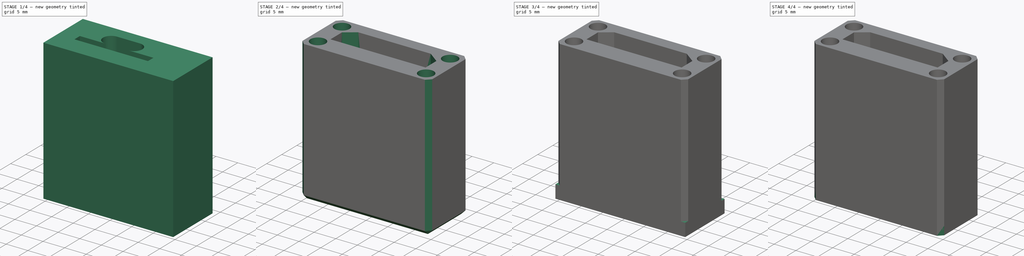
[diagram: build sequence overview — one tinted view per stage of 4, left to right]
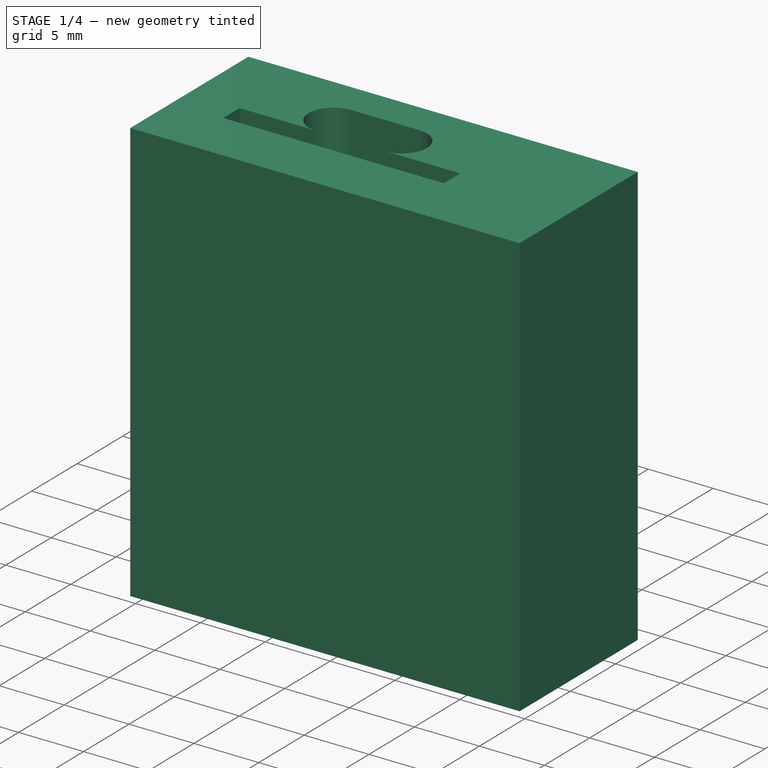
[diagram: stage 1 of 4 — iso view after this stage's code; geometry added in this stage tinted green]
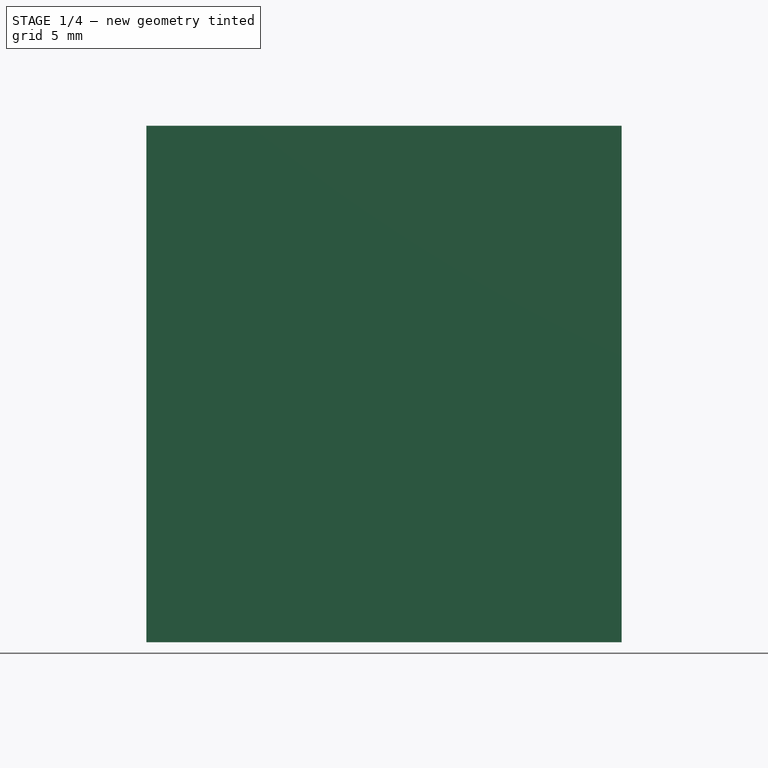
[diagram: stage 1 of 4 — front view after this stage's code; geometry added in this stage tinted green]
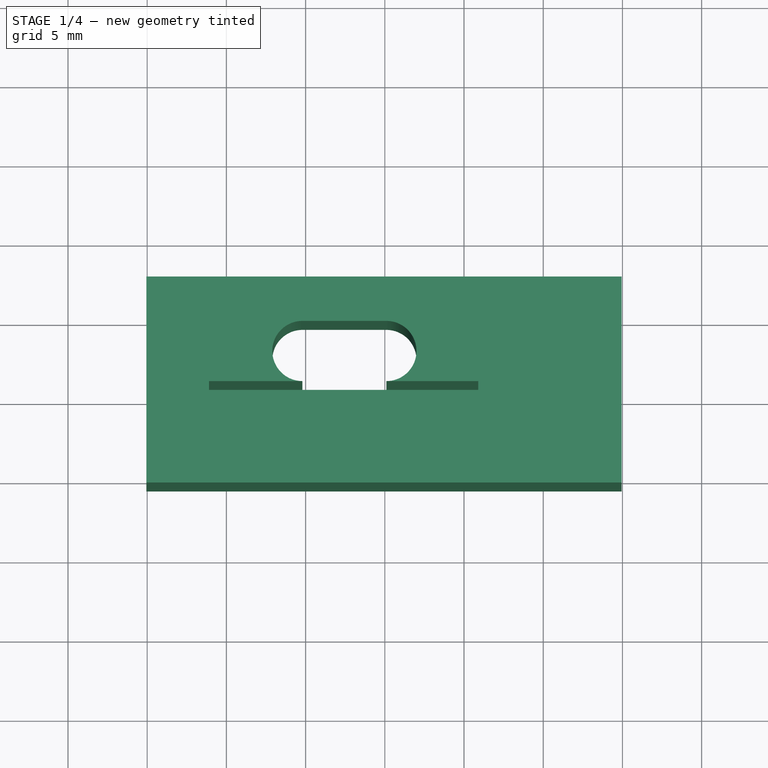
[diagram: stage 1 of 4 — top view after this stage's code; geometry added in this stage tinted green]
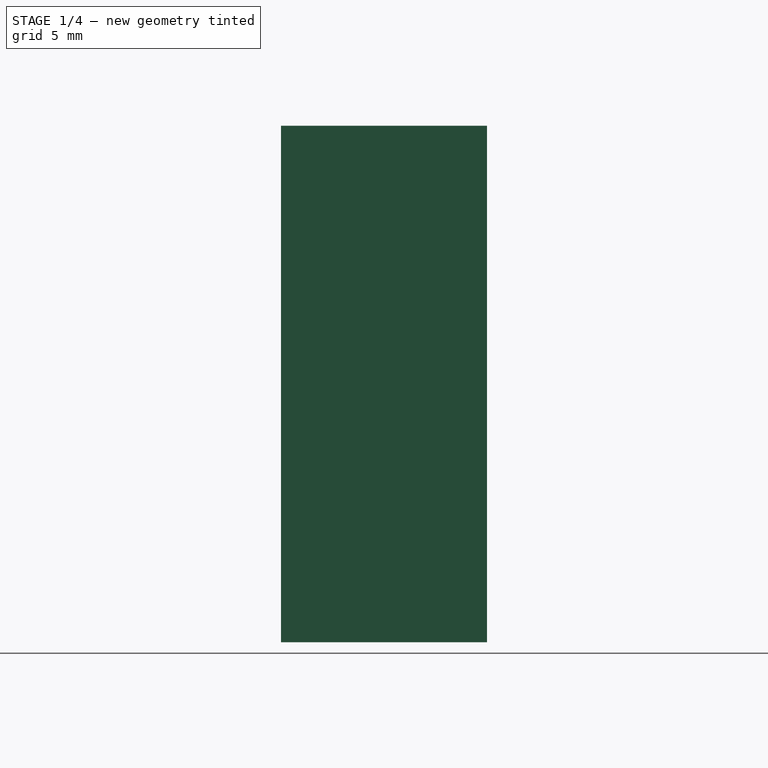
[diagram: stage 1 of 4 — right view after this stage's code; geometry added in this stage tinted green]
FCSTD DOCUMENT  (FreeCAD 1.0R39319 (Git))
Label: all-in-one-cable-cable-enclosure
License: All rights reserved
LicenseURL: https://en.wikipedia.org/wiki/All_rights_reserved
objects: Sketcher::SketchObject×9, PartDesign::Pocket×7, PartDesign::Pad×2, PartDesign::Chamfer×2, PartDesign::Body×2
note: 53 computed .brp shape members not serialized (recipe doc carries the construction recipe); baked Part::Feature solids carry a one-line shape summary decoded from their .brp

FEATURE [Sketcher::SketchObject] Sketch
  ArcFitTolerance = 1e-06
  AttachmentSupport = -> [XY_Plane]
  FullyConstrained = false
  MakeInternals = false
  MapMode = 5
  sketch-geometry (5):
    g0: LineSegment StartX=14.9487 StartY=-5.5 StartZ=0 EndX=14.9487 EndY=7.5 EndZ=0
    g1: LineSegment StartX=14.9487 StartY=7.5 StartZ=0 EndX=-15.0513 EndY=7.5 EndZ=0
    g2: LineSegment StartX=-15.0513 StartY=7.5 StartZ=0 EndX=-15.0513 EndY=-5.5 EndZ=0
    g3: GeomPoint [constr] X=0 Y=0 Z=0
    g4: LineSegment StartX=-15.0513 StartY=-5.5 StartZ=0 EndX=14.9487 EndY=-5.5 EndZ=0
  constraints (12):
    c: Coincident(g0,g1)
    c: Coincident(g1,g2)
    c: Horizontal(g1)
    c: Vertical(g0)
    c: Vertical(g2)
    c: Distance(g0,g2) = 30
    c: Coincident(g3,g-1)
    c: DistanceY(g-1,g1) = 7.5
    c: DistanceY(g2,g2) = 13
    c: DistanceY(g0,g0) = 13
    c: Coincident(g4,g2)
    c: Coincident(g4,g0)
FEATURE [PartDesign::Pad] Pad
  Direction = (0,0,1)
  Length = 32.6
  Length2 = 10
  Profile = -> Sketch
  ReferenceAxis = -> Sketch [N_Axis]
  Refine = true
  Suppressed = false
  Type = 0
FEATURE [Sketcher::SketchObject] Sketch001
  ArcFitTolerance = 1e-06
  AttachmentSupport = -> [Pad]
  ExternalGeometry = -> [Pad]
  FullyConstrained = true
  MakeInternals = false
  MapMode = 5
  Placement = pos=(0,0,32.6) rot=(0,0,1;0rad)
  sketch-geometry (4):
    g0: ArcOfCircle CenterX=-5.20131 CenterY=2.8 CenterZ=0 NormalX=0 NormalY=0 NormalZ=1 AngleXU=0 Radius=1.9 StartAngle=1.5708 EndAngle=4.71239
    g1: ArcOfCircle CenterX=0.098694 CenterY=2.8 CenterZ=0 NormalX=0 NormalY=0 NormalZ=1 AngleXU=0 Radius=1.9 StartAngle=4.71239 EndAngle=7.85398
    g2: LineSegment StartX=-5.20131 StartY=4.7 StartZ=0 EndX=0.098694 EndY=4.7 EndZ=0
    g3: LineSegment StartX=-5.20131 StartY=0.9 StartZ=0 EndX=0.098694 EndY=0.9 EndZ=0
  constraints (10):
    c: Tangent(g0,g2) = 1.5708
    c: Tangent(g0,g3) = -1.5708
    c: Tangent(g1,g2) = 1.5708
    c: Tangent(g1,g3) = -1.5708
    c: Equal(g0,g1)
    c: Horizontal(g3)
    c: Distance(g0,g1) = 5.3
    c: Radius(g0) = 1.9
    c: Distance(g0,g-1) = 2.8
    c: Distance(g0,g-3) = 9.85
FEATURE [PartDesign::Pocket] Pocket
  BaseFeature = -> Pad
  Direction = (0,0,-1)
  Length = 5
  Length2 = 5
  Profile = -> Sketch001
  ReferenceAxis = -> Sketch001 [N_Axis]
  Refine = true
  Suppressed = false
  Type = 1
FEATURE [Sketcher::SketchObject] Sketch002
  ArcFitTolerance = 1e-06
  AttachmentSupport = -> [Pocket]
  ExternalGeometry = -> [Pocket]
  FullyConstrained = true
  MakeInternals = false
  MapMode = 5
  Placement = pos=(0,0,32.6) rot=(0,0,1;0rad)
  sketch-geometry (5):
    g0: LineSegment StartX=-11.1013 StartY=-0.9 StartZ=0 EndX=5.89869 EndY=-0.9 EndZ=0
    g1: LineSegment StartX=5.89869 StartY=-0.9 StartZ=0 EndX=5.89869 EndY=0.9 EndZ=0
    g2: LineSegment StartX=5.89869 StartY=0.9 StartZ=0 EndX=-11.1013 EndY=0.9 EndZ=0
    g3: LineSegment StartX=-11.1013 StartY=0.9 StartZ=0 EndX=-11.1013 EndY=-0.9 EndZ=0
    g4: GeomPoint [constr] X=-2.60131 Y=-1e-16 Z=0
  constraints (13):
    c: Coincident(g0,g1)
    c: Coincident(g1,g2)
    c: Coincident(g2,g3)
    c: Coincident(g3,g0)
    c: Horizontal(g0)
    c: Horizontal(g2)
    c: Vertical(g1)
    c: Vertical(g3)
    c: Symmetric(g2,g0,g4)
    c: Distance(g0,g2) = 1.8
    c: DistanceX(g0,g0) = 17
    c: DistanceY(g1,g-3) = 0
    c: Distance(g-4,g3) = 3.95
FEATURE [PartDesign::Pocket] Pocket001
  BaseFeature = -> Pocket
  Direction = (0,0,-1)
  Length = 31.6
  Length2 = 5
  Profile = -> Sketch002
  ReferenceAxis = -> Sketch002 [N_Axis]
  Refine = true
  Suppressed = false
  Type = 0
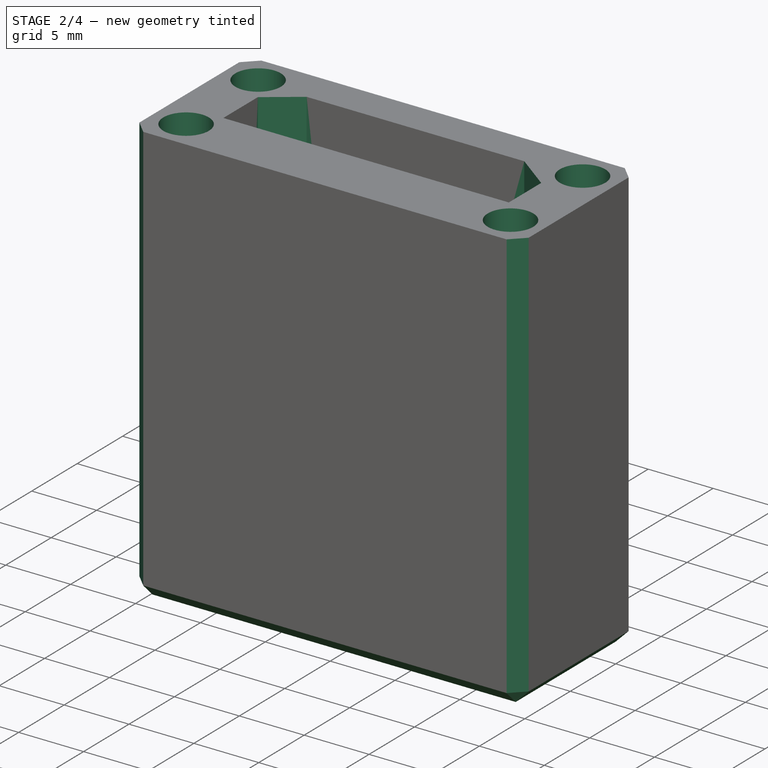
[diagram: stage 2 of 4 — iso view after this stage's code; geometry added in this stage tinted green]
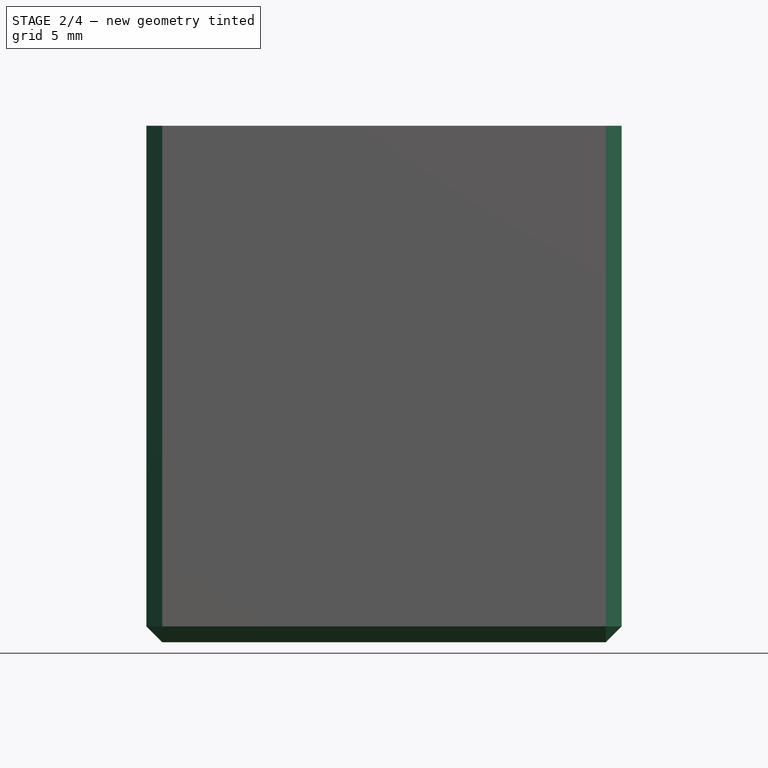
[diagram: stage 2 of 4 — front view after this stage's code; geometry added in this stage tinted green]
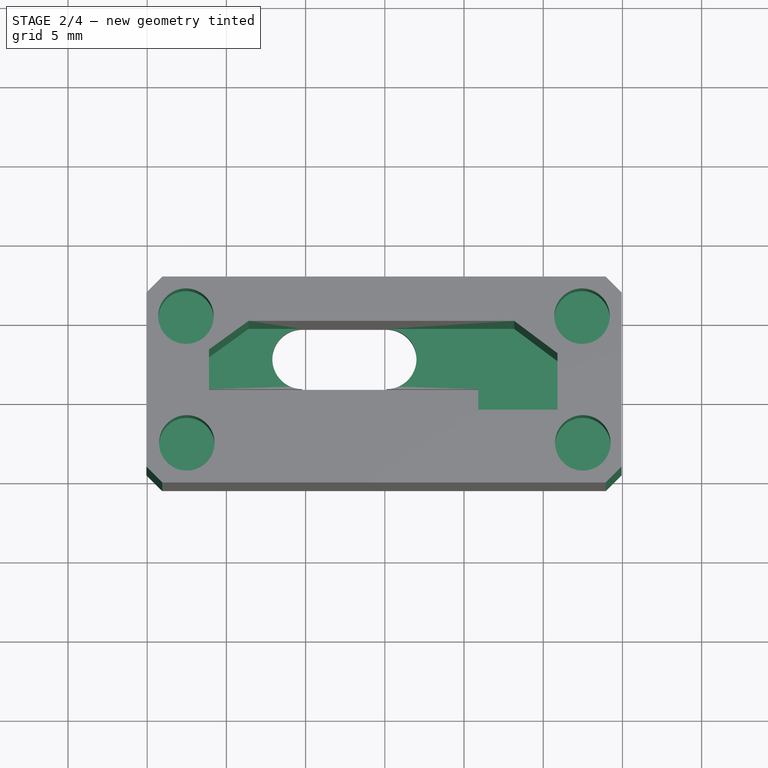
[diagram: stage 2 of 4 — top view after this stage's code; geometry added in this stage tinted green]
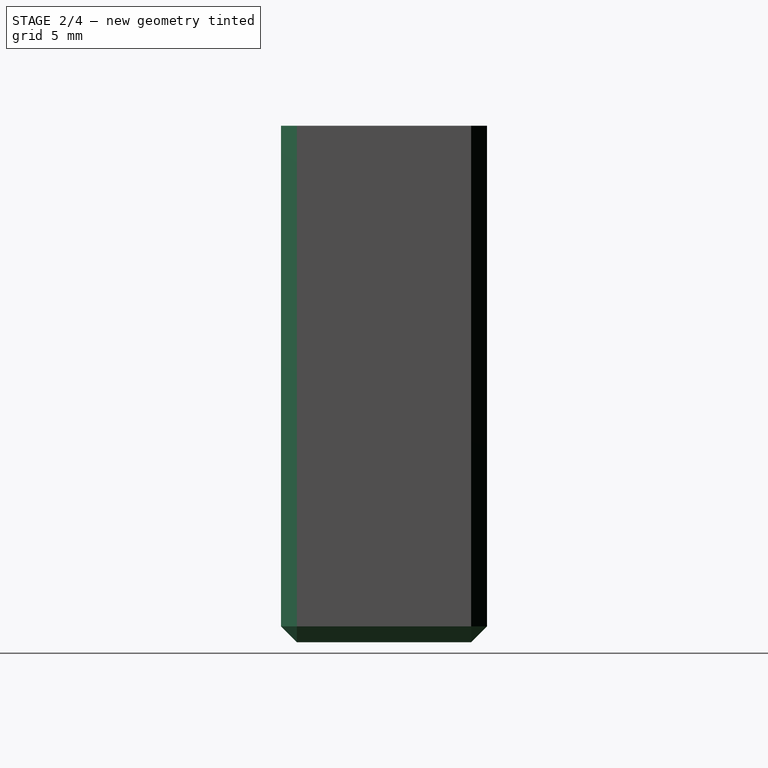
[diagram: stage 2 of 4 — right view after this stage's code; geometry added in this stage tinted green]
FEATURE [Sketcher::SketchObject] Sketch003
  ArcFitTolerance = 1e-06
  AttachmentSupport = -> [Pocket001]
  ExternalGeometry = -> [Pocket001]
  FullyConstrained = false
  MakeInternals = false
  MapMode = 5
  Placement = pos=(0,0,32.6) rot=(0,0,1;0rad)
  sketch-geometry (7):
    g0: LineSegment StartX=-11.1013 StartY=2.89744 StartZ=0 EndX=-11.1013 EndY=-0.9 EndZ=0
    g1: LineSegment StartX=-11.1013 StartY=-0.9 StartZ=0 EndX=10.8987 EndY=-0.9 EndZ=0
    g2: LineSegment StartX=10.8987 StartY=-0.9 StartZ=0 EndX=10.8987 EndY=2.65987 EndZ=0
    g3: LineSegment StartX=8.16946 StartY=4.7 StartZ=0 EndX=-8.60298 EndY=4.7 EndZ=0
    g4: GeomPoint [constr] X=-0.101306 Y=0.998722 Z=0
    g5: LineSegment StartX=-11.1013 StartY=2.89744 StartZ=0 EndX=-8.60298 EndY=4.7 EndZ=0
    g6: LineSegment StartX=8.16946 StartY=4.7 StartZ=0 EndX=10.8987 EndY=2.65987 EndZ=0
  constraints (14):
    c: Coincident(g0,g1)
    c: Coincident(g1,g2)
    c: Vertical(g2)
    c: Horizontal(g1)
    c: Horizontal(g3)
    c: Symmetric(g2,g0,g4)
    c: Coincident(g0,g-5)
    c: DistanceX(g1,g1) = 22
    c: Vertical(g0)
    c: PointOnObject(g-6,g3)
    c: Coincident(g5,g0)
    c: Coincident(g5,g3)
    c: Coincident(g6,g3)
    c: Coincident(g6,g2)
FEATURE [PartDesign::Pocket] Pocket002
  BaseFeature = -> Pocket001
  Direction = (0,0,-1)
  Length = 29.1
  Length2 = 5
  Profile = -> Sketch003
  ReferenceAxis = -> Sketch003 [N_Axis]
  Refine = true
  Suppressed = false
  Type = 0
FEATURE [Sketcher::SketchObject] Sketch004
  ArcFitTolerance = 1e-06
  AttachmentSupport = -> [Pocket002]
  ExternalGeometry = -> [Pocket002]
  FullyConstrained = true
  MakeInternals = false
  MapMode = 5
  Placement = pos=(0,0,32.6) rot=(0,0,1;0rad)
  sketch-geometry (4):
    g0: Circle CenterX=12.4487 CenterY=5 CenterZ=0 NormalX=0 NormalY=0 NormalZ=1 AngleXU=0 Radius=1.75
    g1: Circle CenterX=-12.5 CenterY=-3 CenterZ=0 NormalX=0 NormalY=0 NormalZ=1 AngleXU=0 Radius=1.75
    g2: Circle CenterX=-12.5513 CenterY=5 CenterZ=0 NormalX=0 NormalY=0 NormalZ=1 AngleXU=0 Radius=1.75
    g3: Circle CenterX=12.5 CenterY=-3 CenterZ=0 NormalX=0 NormalY=0 NormalZ=1 AngleXU=0 Radius=1.75
  constraints (12):
    c: Diameter(g0) = 3.5
    c: Diameter(g1) = 3.5
    c: DistanceY(g0,g-5) = 2.5
    c: DistanceX(g0,g-5) = 2.5
    c: DistanceX(g-6,g1) = 2.5
    c: Diameter(g2) = 3.5
    c: Diameter(g3) = 3.5
    c: DistanceX(g-4,g2) = 2.5
    c: DistanceY(g2,g-4) = 2.5
    c: DistanceX(g3,g-6) = 2.5
    c: DistanceY(g-5,g3) = 2.5
    c: DistanceY(g-4,g1) = 2.5
FEATURE [PartDesign::Pocket] Pocket003
  BaseFeature = -> Pocket002
  Direction = (0,0,-1)
  Length = 10
  Length2 = 5
  Profile = -> Sketch004
  ReferenceAxis = -> Sketch004 [N_Axis]
  Refine = true
  Suppressed = false
  Type = 0
FEATURE [PartDesign::Chamfer] Chamfer
  Angle = 45
  Base = -> Pocket003 [Edge8,Edge9,Edge11,Edge5,Edge6,Edge3,Edge2,Edge1]
  BaseFeature = -> Pocket003
  ChamferType = 0
  FlipDirection = false
  Refine = true
  Size = 1
  Size2 = 1
  SupportTransform = false
  Suppressed = false
  UseAllEdges = false
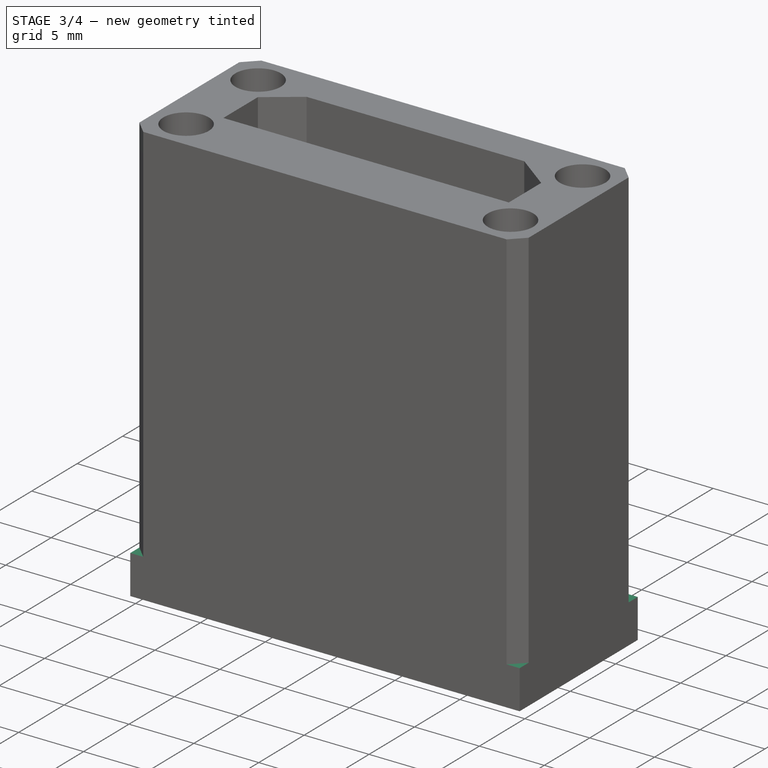
[diagram: stage 3 of 4 — iso view after this stage's code; geometry added in this stage tinted green]
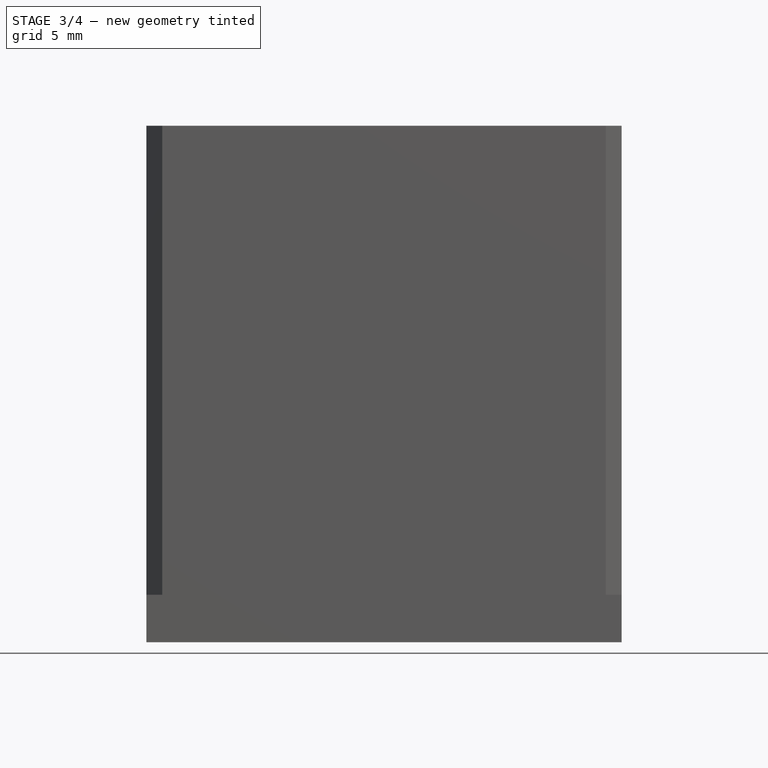
[diagram: stage 3 of 4 — front view after this stage's code; geometry added in this stage tinted green]
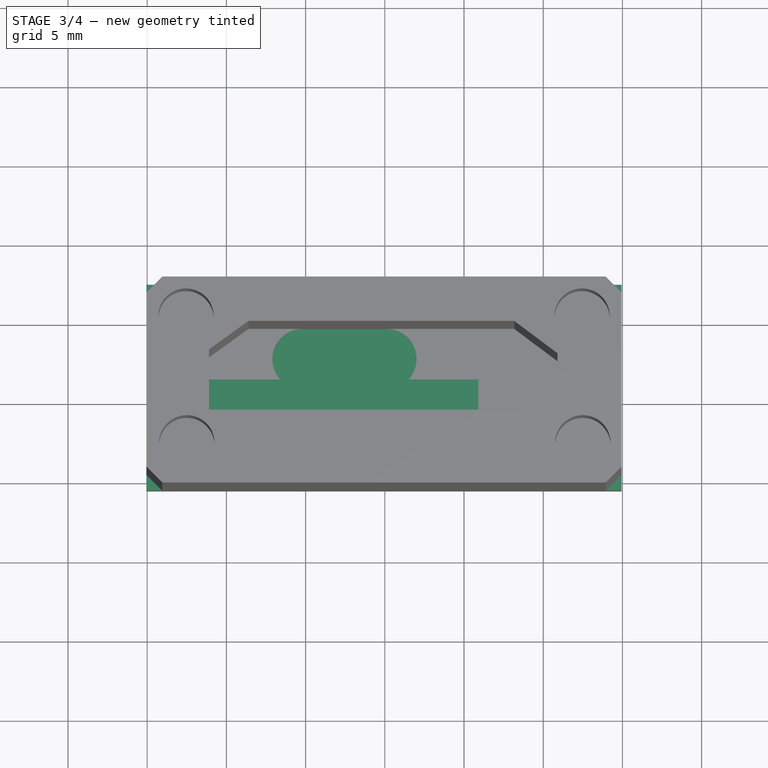
[diagram: stage 3 of 4 — top view after this stage's code; geometry added in this stage tinted green]
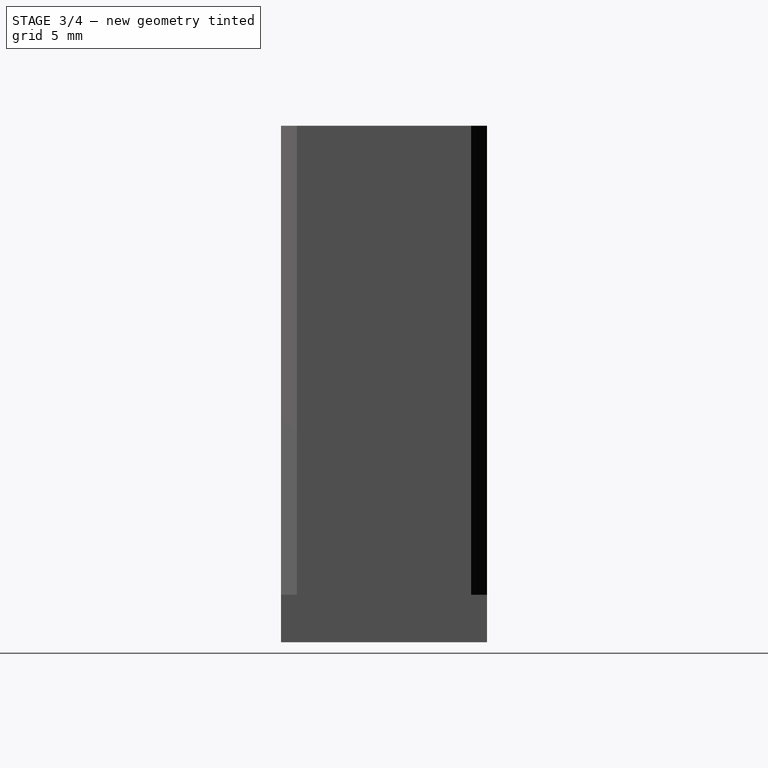
[diagram: stage 3 of 4 — right view after this stage's code; geometry added in this stage tinted green]
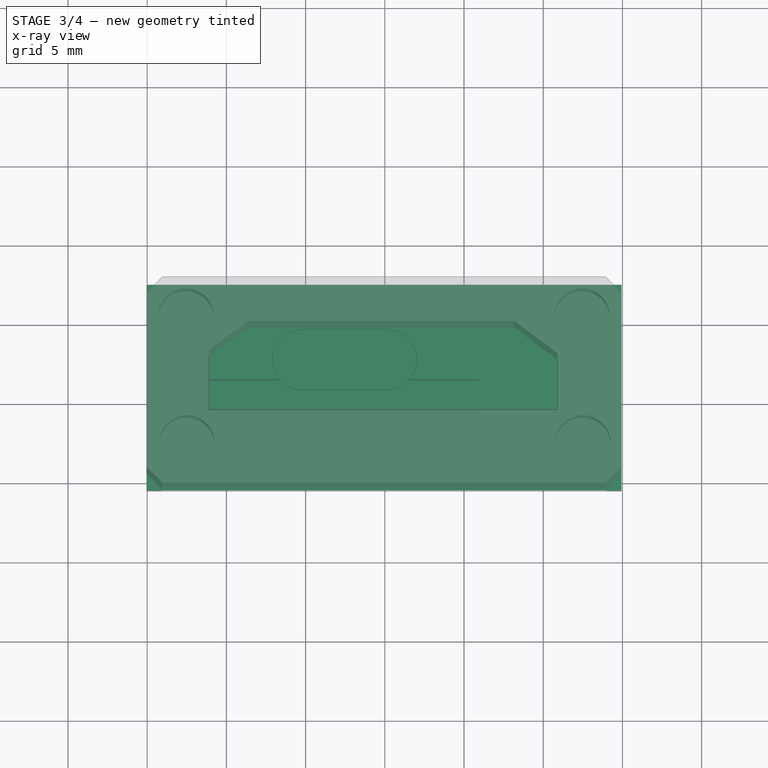
[diagram: stage 3 of 4 — x-ray composite at the top view; earlier geometry ghosted, this stage's added geometry solid]
FEATURE [Sketcher::SketchObject] Sketch005
  ArcFitTolerance = 1e-06
  AttachmentSupport = -> [XY_Plane001]
  FullyConstrained = false
  MakeInternals = false
  MapMode = 5
  sketch-geometry (5):
    g0: LineSegment StartX=14.9487 StartY=-5.5 StartZ=0 EndX=14.9487 EndY=7.5 EndZ=0
    g1: LineSegment StartX=14.9487 StartY=7.5 StartZ=0 EndX=-15.0513 EndY=7.5 EndZ=0
    g2: LineSegment StartX=-15.0513 StartY=7.5 StartZ=0 EndX=-15.0513 EndY=-5.5 EndZ=0
    g3: GeomPoint [constr] X=0 Y=0 Z=0
    g4: LineSegment StartX=-15.0513 StartY=-5.5 StartZ=0 EndX=14.9487 EndY=-5.5 EndZ=0
  constraints (12):
    c: Coincident(g0,g1)
    c: Coincident(g1,g2)
    c: Horizontal(g1)
    c: Vertical(g0)
    c: Vertical(g2)
    c: Distance(g0,g2) = 30
    c: Coincident(g3,g-1)
    c: DistanceY(g-1,g1) = 7.5
    c: DistanceY(g2,g2) = 13
    c: DistanceY(g0,g0) = 13
    c: Coincident(g4,g2)
    c: Coincident(g4,g0)
FEATURE [PartDesign::Pad] Pad001
  Direction = (0,0,1)
  Length = 3
  Length2 = 10
  Profile = -> Sketch005
  ReferenceAxis = -> Sketch005 [N_Axis]
  Refine = true
  Suppressed = false
  Type = 0
FEATURE [PartDesign::Body] Body001  label="Lid"
  AllowCompound = false
  Group = -> [Sketch005,Pad001,Sketch006,Pocket004,Chamfer001,Sketch007,Pocket005]
  Origin = -> Origin001
  Placement = pos=(0,0,32.6) rot=(0,0,1;0rad)
  Tip = -> Pocket005
FEATURE [Sketcher::SketchObject] Sketch008
  ArcFitTolerance = 1e-06
  AttachmentSupport = -> [Chamfer]
  ExternalGeometry = -> [Chamfer]
  FullyConstrained = true
  MakeInternals = false
  MapMode = 5
  Placement = pos=(0,0,32.6) rot=(0,0,1;0rad)
  sketch-geometry (5):
    g0: LineSegment StartX=-11.1013 StartY=1.5 StartZ=0 EndX=-11.1013 EndY=-0.9 EndZ=0
    g1: LineSegment StartX=-11.1013 StartY=-0.9 StartZ=0 EndX=5.89869 EndY=-0.9 EndZ=0
    g2: LineSegment StartX=5.89869 StartY=-0.9 StartZ=0 EndX=5.89869 EndY=1.5 EndZ=0
    g3: LineSegment StartX=5.89869 StartY=1.5 StartZ=0 EndX=-11.1013 EndY=1.5 EndZ=0
    g4: GeomPoint [constr] X=-2.60131 Y=0.3 Z=0
  constraints (12):
    c: Coincident(g0,g1)
    c: Coincident(g1,g2)
    c: Coincident(g2,g3)
    c: Coincident(g3,g0)
    c: Vertical(g0)
    c: Vertical(g2)
    c: Horizontal(g1)
    c: Horizontal(g3)
    c: Symmetric(g2,g0,g4)
    c: Coincident(g0,g-3)
    c: PointOnObject(g-4,g2)
    c: DistanceY(g2,g2) = 2.4
FEATURE [PartDesign::Pocket] Pocket006
  BaseFeature = -> Chamfer
  Direction = (0,0,-1)
  Length = 31.6
  Length2 = 5
  Profile = -> Sketch008
  ReferenceAxis = -> Sketch008 [N_Axis]
  Refine = true
  Suppressed = false
  Type = 0
FEATURE [PartDesign::Body] Body  label="Box"
  AllowCompound = false
  Group = -> [Sketch,Pad,Sketch001,Pocket,Sketch002,Pocket001,Sketch003,Pocket002,Sketch004,Pocket003,Chamfer,Sketch008,Pocket006]
  Origin = -> Origin
  Tip = -> Pocket006
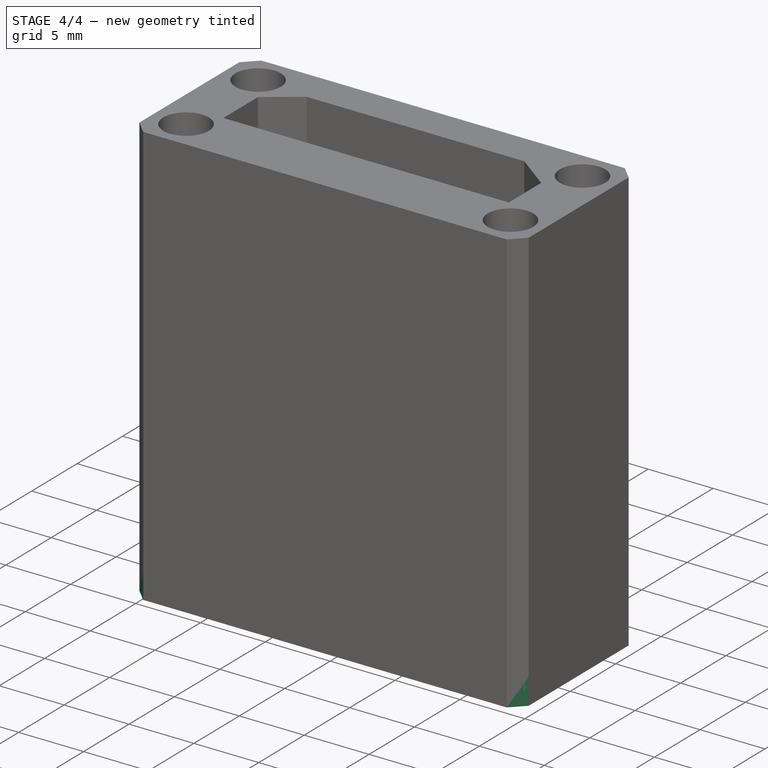
[diagram: stage 4 of 4 — iso view after this stage's code; geometry added in this stage tinted green]
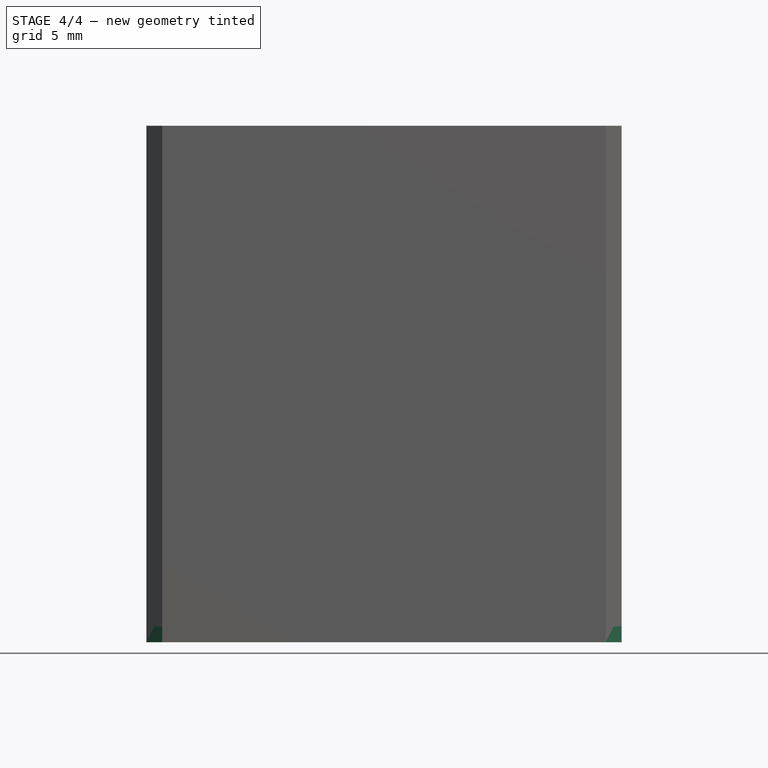
[diagram: stage 4 of 4 — front view after this stage's code; geometry added in this stage tinted green]
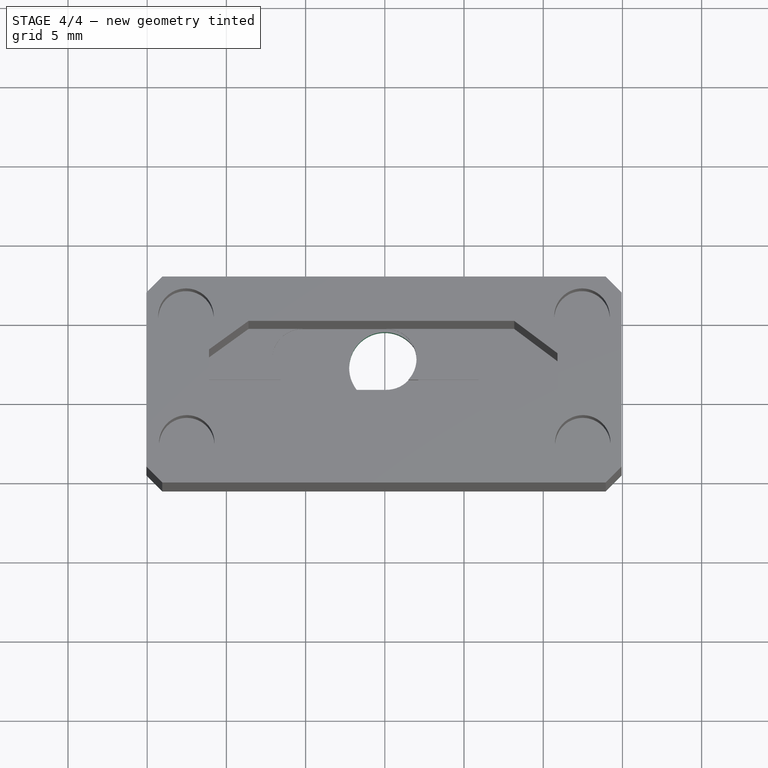
[diagram: stage 4 of 4 — top view after this stage's code; geometry added in this stage tinted green]
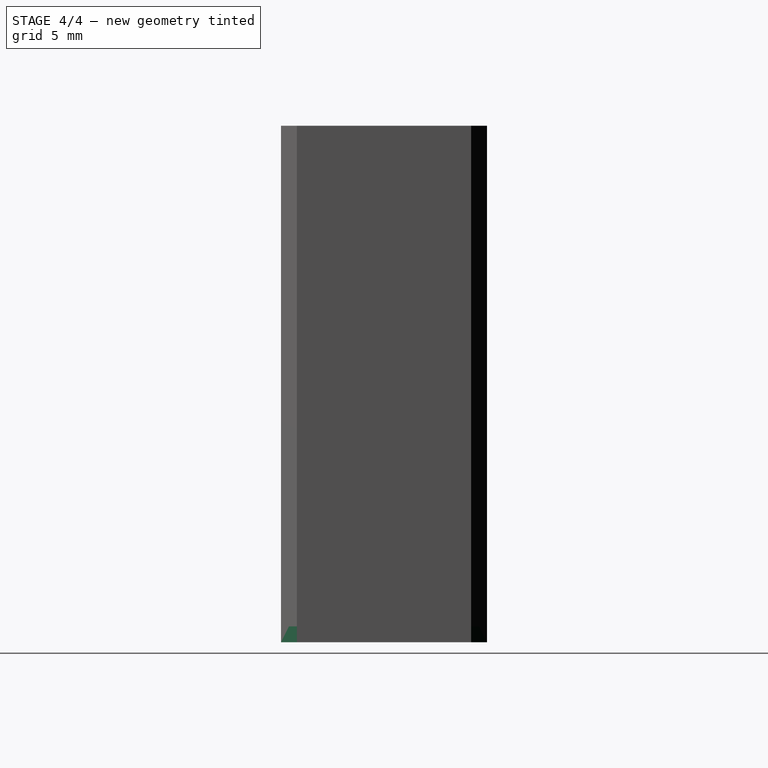
[diagram: stage 4 of 4 — right view after this stage's code; geometry added in this stage tinted green]
FEATURE [Sketcher::SketchObject] Sketch006
  ArcFitTolerance = 1e-06
  AttachmentSupport = -> [Pad001]
  ExternalGeometry = -> [Pad001]
  FullyConstrained = true
  MakeInternals = false
  MapMode = 5
  Placement = pos=(0,0,3) rot=(0,0,1;0rad)
  sketch-geometry (4):
    g0: Circle CenterX=12.4487 CenterY=5 CenterZ=0 NormalX=0 NormalY=0 NormalZ=1 AngleXU=0 Radius=1.1
    g1: Circle CenterX=-12.5513 CenterY=-3 CenterZ=0 NormalX=0 NormalY=0 NormalZ=1 AngleXU=0 Radius=1.1
    g2: Circle CenterX=12.4487 CenterY=-3 CenterZ=0 NormalX=0 NormalY=0 NormalZ=1 AngleXU=0 Radius=1.1
    g3: Circle CenterX=-12.5513 CenterY=5 CenterZ=0 NormalX=0 NormalY=0 NormalZ=1 AngleXU=0 Radius=1.1
  constraints (12):
    c: Diameter(g0) = 2.2
    c: Diameter(g1) = 2.2
    c: Diameter(g2) = 2.2
    c: Diameter(g3) = 2.2
    c: DistanceX(g-3,g3) = 2.5
    c: DistanceY(g3,g-3) = 2.5
    c: DistanceX(g0,g-4) = 2.5
    c: DistanceY(g0,g-4) = 2.5
    c: DistanceY(g-5,g2) = 2.5
    c: DistanceX(g2,g-5) = 2.5
    c: DistanceX(g-6,g1) = 2.5
    c: DistanceY(g-6,g1) = 2.5
FEATURE [PartDesign::Pocket] Pocket004
  BaseFeature = -> Pad001
  Direction = (0,0,-1)
  Length = 5
  Length2 = 5
  Profile = -> Sketch006
  ReferenceAxis = -> Sketch006 [N_Axis]
  Refine = true
  Suppressed = false
  Type = 1
FEATURE [PartDesign::Chamfer] Chamfer001
  Angle = 45
  Base = -> Pocket004 [Edge8,Edge16,Edge5,Edge7,Edge10,Edge4,Edge2,Edge1]
  BaseFeature = -> Pocket004
  ChamferType = 0
  FlipDirection = false
  Refine = true
  Size = 1
  Size2 = 1
  SupportTransform = false
  Suppressed = false
  UseAllEdges = false
FEATURE [Sketcher::SketchObject] Sketch007
  ArcFitTolerance = 1e-06
  AttachmentSupport = -> [Chamfer001]
  ExternalGeometry = -> [Chamfer001]
  FullyConstrained = true
  MakeInternals = false
  MapMode = 5
  Placement = pos=(0,0,3) rot=(0,0,1;0rad)
  sketch-geometry (1):
    g0: Circle CenterX=0 CenterY=2.25 CenterZ=0 NormalX=0 NormalY=0 NormalZ=1 AngleXU=0 Radius=2.25
  constraints (3):
    c: Diameter(g0) = 4.5
    c: PointOnObject(g0,g-2)
    c: DistanceY(g0,g-5) = 5.25
FEATURE [PartDesign::Pocket] Pocket005
  BaseFeature = -> Chamfer001
  Direction = (0,0,-1)
  Length = 5
  Length2 = 5
  Profile = -> Sketch007
  ReferenceAxis = -> Sketch007 [N_Axis]
  Refine = true
  Suppressed = false
  Type = 1
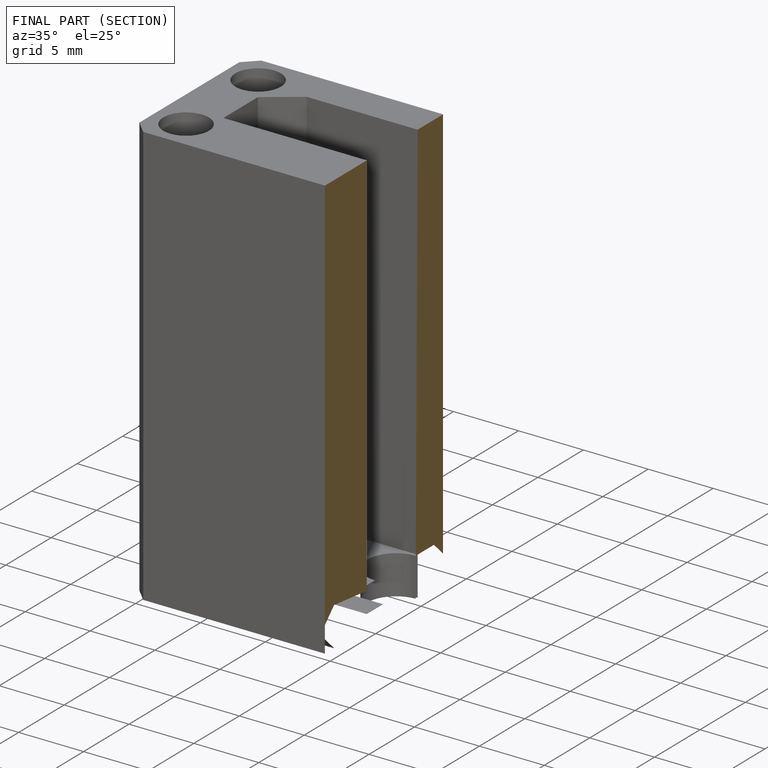
[diagram: finished part — half-section view (interior)]
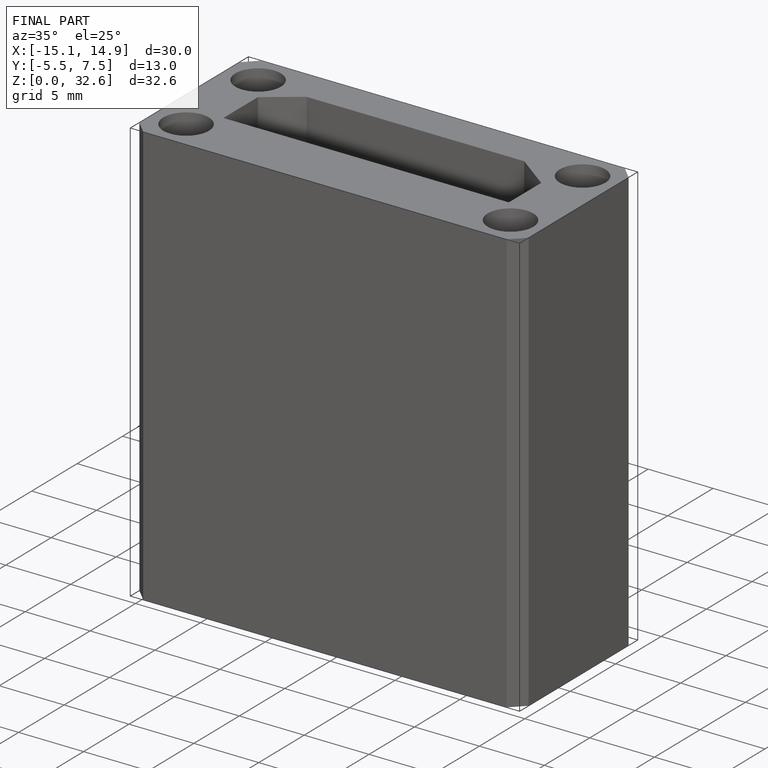
[diagram: finished part — iso view with bounding-box wireframe]
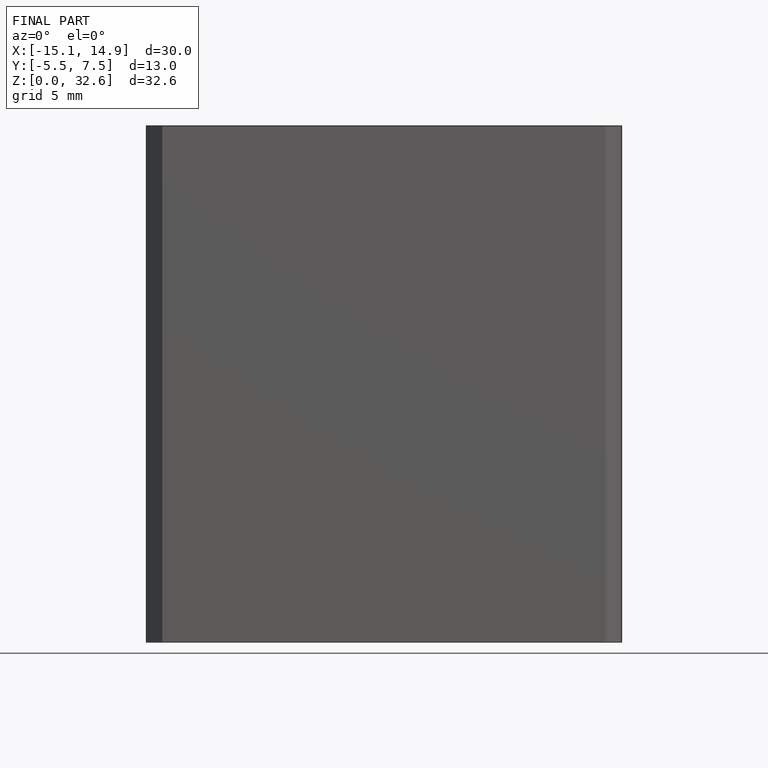
[diagram: finished part — front view with bounding-box wireframe]
